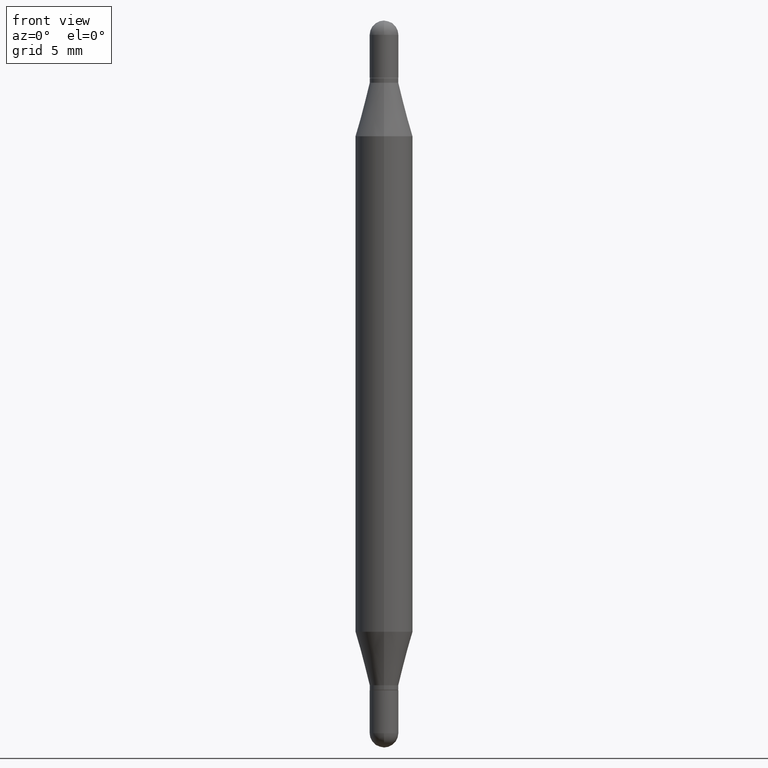
[diagram: clean part render]
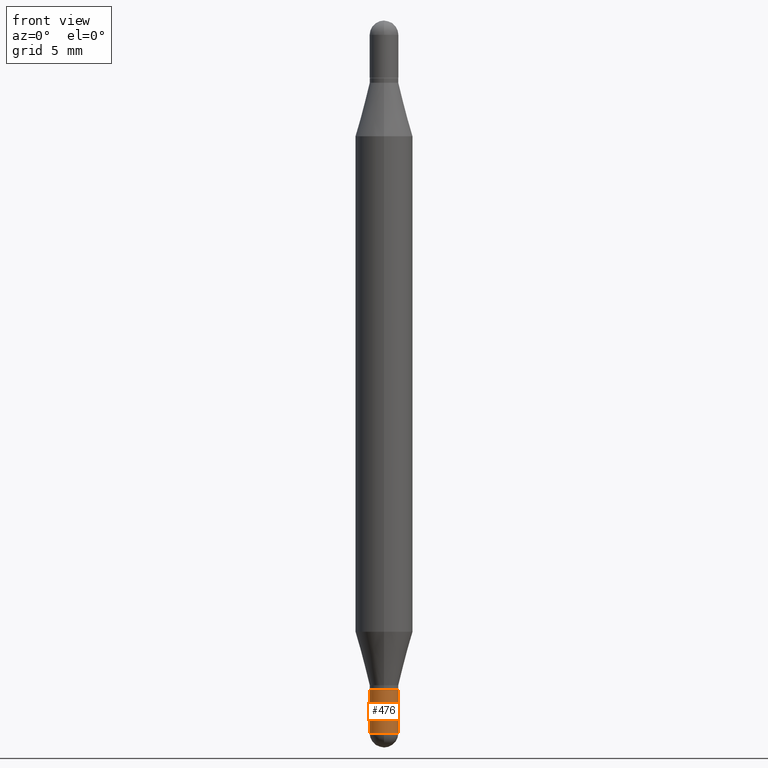
[diagram: same view with one face highlighted and labeled with its STEP entity id]
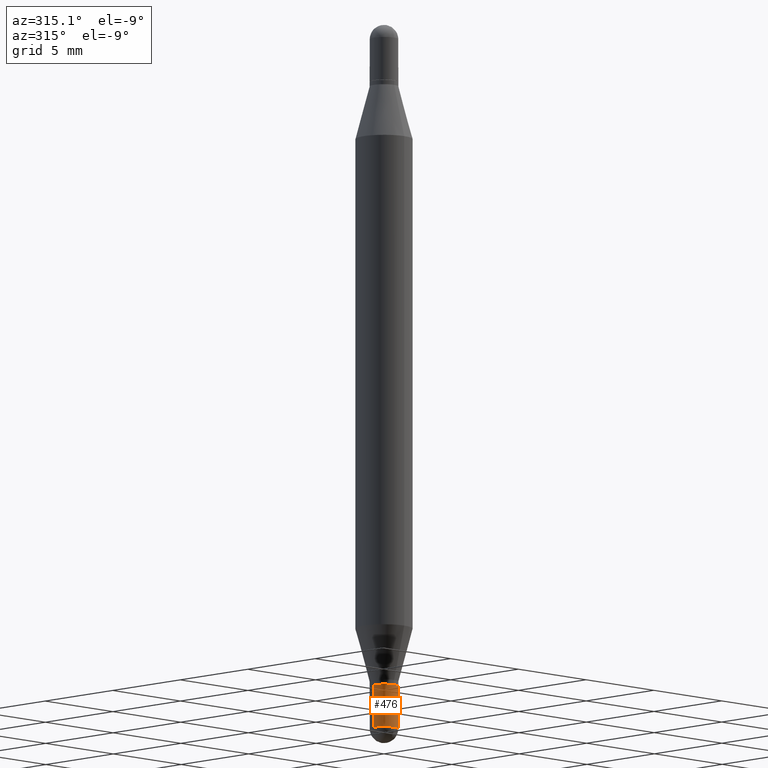
[diagram: same view with one face highlighted and labeled with its STEP entity id]
A machine part, front view. The second image highlights one B-rep face of the part: STEP entity #476.
A second angle (auxiliary view) of the same face is appended — the face is thin or edge-on in the first view.
In plain terms, the highlighted cylindrical surface (edge-blend (fillet) strip) has radius 0.7506 mm, axis along (-0, 0, 1).
Its self-contained STEP definition (entity closure, byte-faithful):
#11 = AXIS2_PLACEMENT_3D ( 'NONE', #194, #539, #451 ) ;
#25 = ORIENTED_EDGE ( 'NONE', *, *, #191, .F. ) ;
#40 = ORIENTED_EDGE ( 'NONE', *, *, #296, .F. ) ;
#67 = CIRCLE ( 'NONE', #11, 0.02954999999999999988 ) ;
#114 = VERTEX_POINT ( 'NONE', #1079 ) ;
#123 = DIRECTION ( 'NONE',  ( -2.445468806185136877E-29, 3.491481338843145188E-15, 1.000000000000000000 ) ) ;
#133 = VERTEX_POINT ( 'NONE', #667 ) ;
#148 = DIRECTION ( 'NONE',  ( 1.000000000000000000, -6.982962677686266711E-15, 4.876176775795935793E-29 ) ) ;
#177 = AXIS2_PLACEMENT_3D ( 'NONE', #391, #919, #148 ) ;
#179 = VERTEX_POINT ( 'NONE', #945 ) ;
#184 = ORIENTED_EDGE ( 'NONE', *, *, #593, .T. ) ;
#191 = EDGE_CURVE ( 'NONE', #114, #179, #284, .T. ) ;
#194 = CARTESIAN_POINT ( 'NONE',  ( 3.586402277710812283E-29, -5.120431957480415249E-15, -1.466550000000000020 ) ) ;
#197 = VERTEX_POINT ( 'NONE', #926 ) ;
#230 = VECTOR ( 'NONE', #123, 39.37007874015748143 ) ;
#247 = AXIS2_PLACEMENT_3D ( 'NONE', #583, #333, #776 ) ;
#253 = DIRECTION ( 'NONE',  ( -2.445468806185136877E-29, 3.491481338843145188E-15, 1.000000000000000000 ) ) ;
#284 = CIRCLE ( 'NONE', #247, 0.02954999999999999988 ) ;
#296 = EDGE_CURVE ( 'NONE', #133, #114, #794, .T. ) ;
#333 = DIRECTION ( 'NONE',  ( -2.445468806185136597E-29, 3.491481338843145583E-15, 1.000000000000000000 ) ) ;
#367 = CARTESIAN_POINT ( 'NONE',  ( -0.02954999999999999988, 2.099653784171096041E-16, -1.453545319170324550E-30 ) ) ;
#391 = CARTESIAN_POINT ( 'NONE',  ( 0.000000000000000000, 0.000000000000000000, 0.000000000000000000 ) ) ;
#405 = AXIS2_PLACEMENT_3D ( 'NONE', #613, #962, #435 ) ;
#433 = EDGE_LOOP ( 'NONE', ( #40, #1026, #610, #184, #25 ) ) ;
#435 = DIRECTION ( 'NONE',  ( 1.000000000000000000, -6.982962677686261977E-15, 0.000000000000000000 ) ) ;
#451 = DIRECTION ( 'NONE',  ( 1.000000000000000000, -6.982962677686261977E-15, 0.000000000000000000 ) ) ;
#476 = ADVANCED_FACE ( 'NONE', ( #1094 ), #559, .T. ) ;
#478 = CARTESIAN_POINT ( 'NONE',  ( 0.02954999999999999988, -5.172193168328763816E-15, -1.466550000000000020 ) ) ;
#515 = VECTOR ( 'NONE', #253, 39.37007874015748143 ) ;
#539 = DIRECTION ( 'NONE',  ( -2.445468806185136597E-29, 3.491481338843145583E-15, 1.000000000000000000 ) ) ;
#546 = VERTEX_POINT ( 'NONE', #478 ) ;
#559 = CYLINDRICAL_SURFACE ( 'NONE', #177, 0.02954999999999999988 ) ;
#583 = CARTESIAN_POINT ( 'NONE',  ( 3.369856014923117948E-29, -4.811261284925853951E-15, -1.377999999999999892 ) ) ;
#590 = LINE ( 'NONE', #687, #515 ) ;
#593 = EDGE_CURVE ( 'NONE', #546, #179, #590, .T. ) ;
#610 = ORIENTED_EDGE ( 'NONE', *, *, #820, .T. ) ;
#613 = CARTESIAN_POINT ( 'NONE',  ( 3.586402277710812283E-29, -5.120431957480415249E-15, -1.466550000000000020 ) ) ;
#667 = CARTESIAN_POINT ( 'NONE',  ( -0.02954999999999999988, -4.755881242786025637E-15, -1.466550000000000020 ) ) ;
#687 = CARTESIAN_POINT ( 'NONE',  ( 0.02954999999999999988, -2.063465471256291914E-16, 1.440910237247699070E-30 ) ) ;
#776 = DIRECTION ( 'NONE',  ( 1.000000000000000000, -6.982962677686261977E-15, 0.000000000000000000 ) ) ;
#794 = LINE ( 'NONE', #367, #230 ) ;
#820 = EDGE_CURVE ( 'NONE', #197, #546, #898, .T. ) ;
#847 = EDGE_CURVE ( 'NONE', #133, #197, #67, .T. ) ;
#898 = CIRCLE ( 'NONE', #405, 0.02954999999999999988 ) ;
#919 = DIRECTION ( 'NONE',  ( -2.445468806185136597E-29, 3.491481338843145583E-15, 1.000000000000000000 ) ) ;
#926 = CARTESIAN_POINT ( 'NONE',  ( -2.063465471255932489E-16, -0.02955000000000511384, -1.466550000000000020 ) ) ;
#945 = CARTESIAN_POINT ( 'NONE',  ( 0.02954999999999999988, -5.017607832051483561E-15, -1.377999999999999892 ) ) ;
#962 = DIRECTION ( 'NONE',  ( -2.445468806185136597E-29, 3.491481338843145583E-15, 1.000000000000000000 ) ) ;
#1026 = ORIENTED_EDGE ( 'NONE', *, *, #847, .T. ) ;
#1079 = CARTESIAN_POINT ( 'NONE',  ( -0.02954999999999999988, -4.755881242786025637E-15, -1.377999999999999892 ) ) ;
#1094 = FACE_OUTER_BOUND ( 'NONE', #433, .T. ) ;